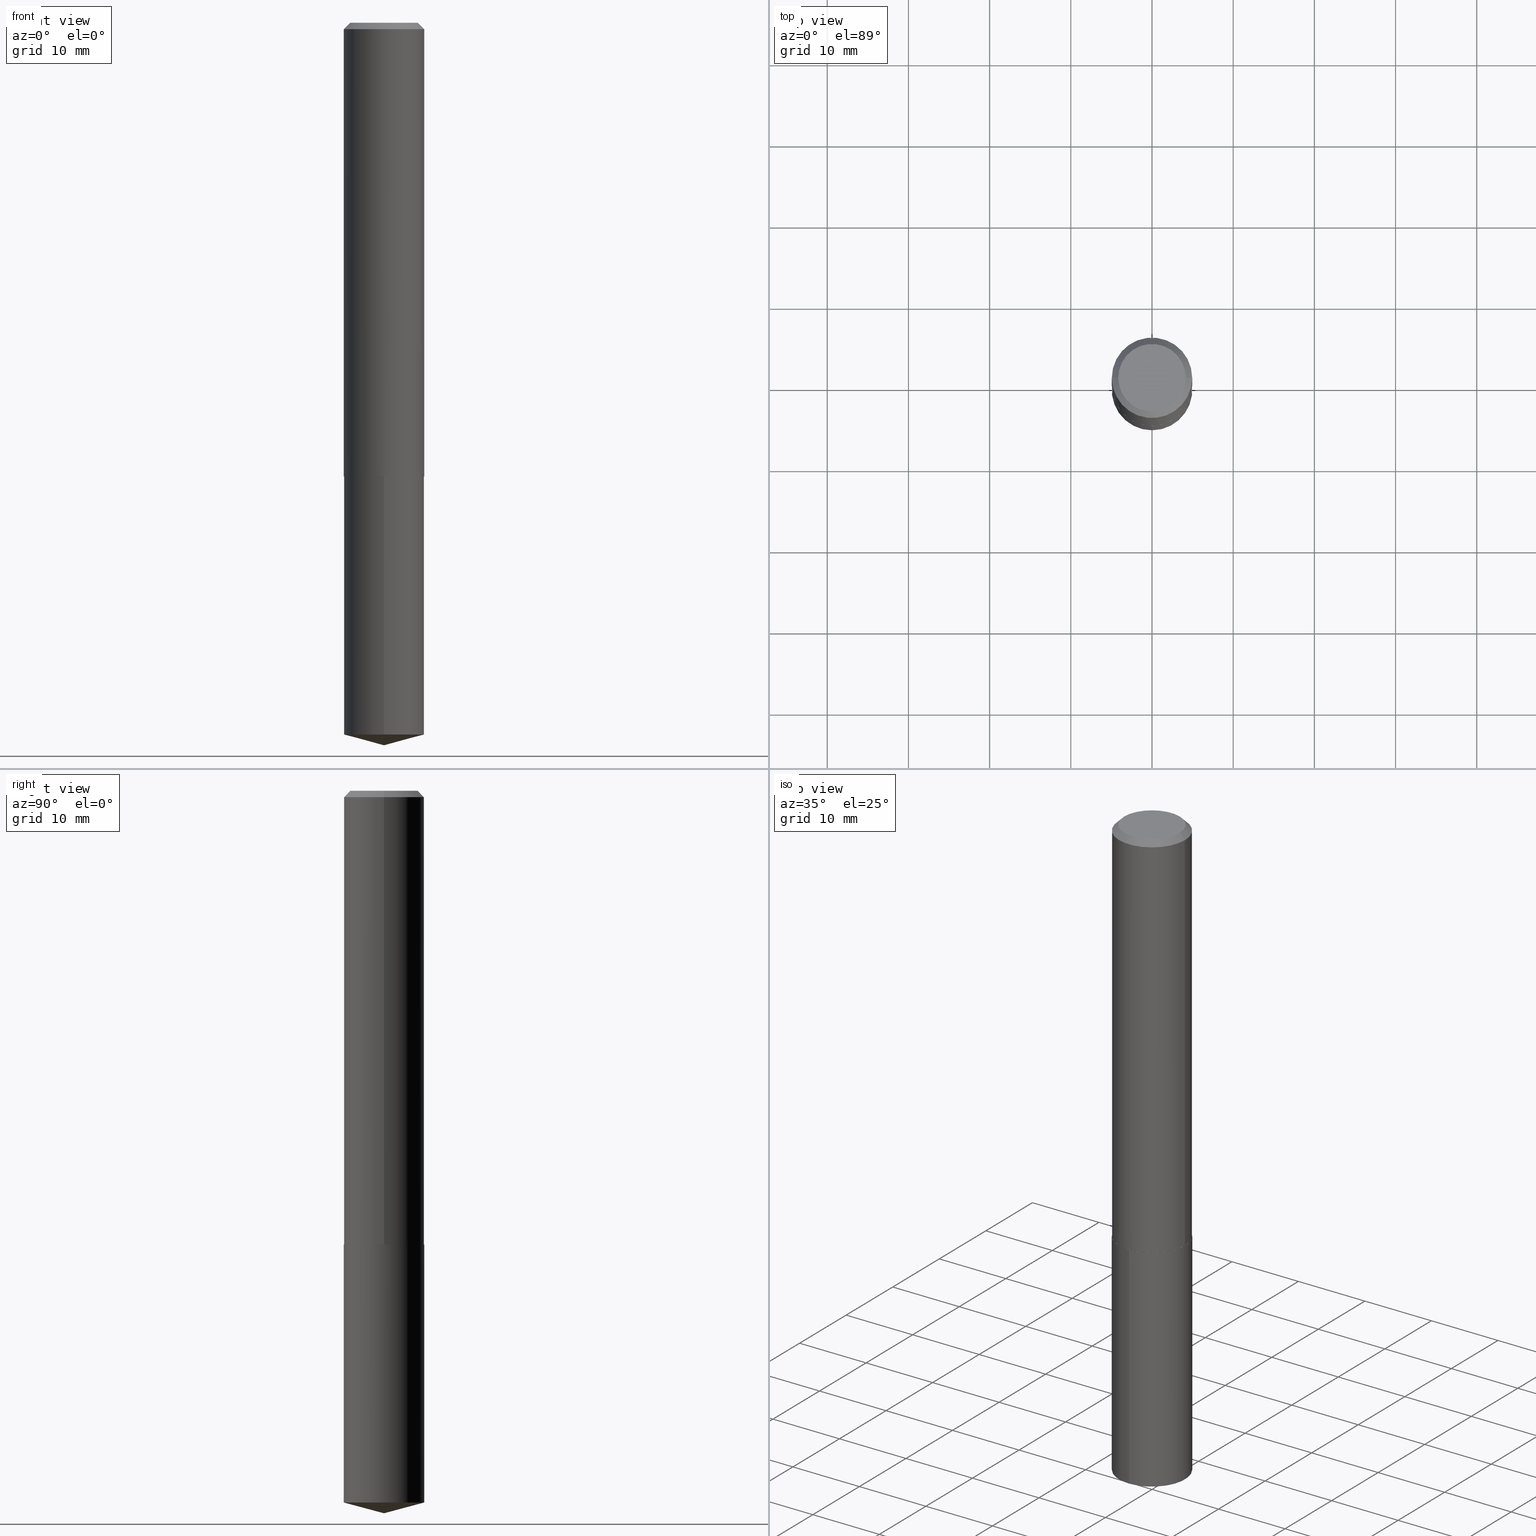
[diagram: canonical four-view strip — front | top / right | iso, engineering-drawing reading convention]
A machine part, canonical four-view strip (front | top / right | iso — engineering-drawing reading convention). The complete STEP part file that produces these views, byte-faithful:
ISO-10303-21;
HEADER;
FILE_DESCRIPTION (( 'STEP AP203' ),
    '1' );
FILE_NAME ('69034.STEP',
    '2024-04-23T14:31:24',
    ( '' ),
    ( '' ),
    'SwSTEP 2.0',
    'SolidWorks 2023',
    '' );
FILE_SCHEMA (( 'CONFIG_CONTROL_DESIGN' ));
ENDSEC;

DATA;
#1 = FACE_OUTER_BOUND ( 'NONE', #18, .T. ) ;
#2 = COORDINATED_UNIVERSAL_TIME_OFFSET ( 5, 0, .BEHIND. ) ;
#3 = ORIENTED_EDGE ( 'NONE', *, *, #290, .T. ) ;
#4 = APPROVAL_STATUS ( 'not_yet_approved' ) ;
#5 = DIRECTION ( 'NONE',  ( 1.000000000000000000, -6.982962677686266711E-15, 4.876176775795935232E-29 ) ) ;
#6 =( NAMED_UNIT ( * ) PLANE_ANGLE_UNIT ( ) SI_UNIT ( $, .RADIAN. ) );
#7 = ORIENTED_EDGE ( 'NONE', *, *, #158, .F. ) ;
#8 = AXIS2_PLACEMENT_3D ( 'NONE', #80, #257, #113 ) ;
#9 = ORIENTED_EDGE ( 'NONE', *, *, #340, .T. ) ;
#10 = CC_DESIGN_PERSON_AND_ORGANIZATION_ASSIGNMENT ( #176, #271, ( #350 ) ) ;
#11 = CARTESIAN_POINT ( 'NONE',  ( -0.1948999999999999899, 1.251870634042204188E-15, -0.03125000000000022898 ) ) ;
#12 = VERTEX_POINT ( 'NONE', #272 ) ;
#13 = CARTESIAN_POINT ( 'NONE',  ( 0.1944000000000002670, -9.041540075068204693E-15, -2.200799999999999201 ) ) ;
#14 = ORIENTED_EDGE ( 'NONE', *, *, #145, .T. ) ;
#15 = LINE ( 'NONE', #11, #56 ) ;
#16 = CONICAL_SURFACE ( 'NONE', #216, 146.9311341562580253, 1.308996938995752313 ) ;
#17 = EDGE_CURVE ( 'NONE', #46, #219, #328, .T. ) ;
#18 = EDGE_LOOP ( 'NONE', ( #42, #308, #69, #148 ) ) ;
#19 = DIRECTION ( 'NONE',  ( -2.445468806185136597E-29, 3.491481338843145583E-15, 1.000000000000000000 ) ) ;
#20 = CARTESIAN_POINT ( 'NONE',  ( -0.1949000000000001565, 1.384847791996436374E-15, -9.587004490906818331E-30 ) ) ;
#21 = DIRECTION ( 'NONE',  ( 1.000000000000000000, -6.982962677686266711E-15, 4.876171972610107408E-29 ) ) ;
#22 = CONICAL_SURFACE ( 'NONE', #8, 146.9311341562580253, 1.308996938995752313 ) ;
#23 = CARTESIAN_POINT ( 'NONE',  ( 1.384847791996519796E-15, 0.1948999999999923294, -2.200800000000000090 ) ) ;
#24 = ADVANCED_FACE ( 'NONE', ( #301 ), #124, .T. ) ;
#25 = DIRECTION ( 'NONE',  ( 1.000000000000000000, -6.982962677686265922E-15, 4.876176775795935793E-29 ) ) ;
#26 = DIRECTION ( 'NONE',  ( -0.7071067811868372299, 7.493145998871401767E-15, 0.7071067811862578045 ) ) ;
#27 = AXIS2_PLACEMENT_3D ( 'NONE', #103, #220, #78 ) ;
#28 = CARTESIAN_POINT ( 'NONE',  ( -1.360979425880999252E-15, -0.1949000000000076782, -2.200799999999999201 ) ) ;
#29 =( CONVERSION_BASED_UNIT ( 'INCH', #59 ) LENGTH_UNIT ( ) NAMED_UNIT ( #238 ) );
#30 = APPROVAL_STATUS ( 'not_yet_approved' ) ;
#31 = ORIENTED_EDGE ( 'NONE', *, *, #258, .F. ) ;
#32 = AXIS2_PLACEMENT_3D ( 'NONE', #262, #193, #229 ) ;
#33 = PERSON_AND_ORGANIZATION ( #173, #146 ) ;
#34 = ADVANCED_FACE ( 'NONE', ( #1 ), #333, .T. ) ;
#35 = ORIENTED_EDGE ( 'NONE', *, *, #353, .T. ) ;
#36 = PERSON_AND_ORGANIZATION_ROLE ( 'creator' ) ;
#37 = CARTESIAN_POINT ( 'NONE',  ( 5.381987748652247650E-29, -7.684052130525994609E-15, -2.200799999999999645 ) ) ;
#38 = EDGE_CURVE ( 'NONE', #44, #331, #320, .T. ) ;
#39 = DIRECTION ( 'NONE',  ( 0.000000000000000000, 0.000000000000000000, 1.000000000000000000 ) ) ;
#40 = EDGE_LOOP ( 'NONE', ( #95, #234 ) ) ;
#41 = ORIENTED_EDGE ( 'NONE', *, *, #325, .F. ) ;
#42 = ORIENTED_EDGE ( 'NONE', *, *, #194, .T. ) ;
#43 = AXIS2_PLACEMENT_3D ( 'NONE', #100, #189, #218 ) ;
#44 = VERTEX_POINT ( 'NONE', #246 ) ;
#45 = CARTESIAN_POINT ( 'NONE',  ( 0.1636499999999999622, -1.284470174469915757E-15, 2.449293598379592612E-19 ) ) ;
#46 = VERTEX_POINT ( 'NONE', #370 ) ;
#47 = DESIGN_CONTEXT ( 'detailed design', #326, 'design' ) ;
#48 = DIRECTION ( 'NONE',  ( -6.982962677686267499E-15, -1.000000000000000000, 3.510303681827568252E-15 ) ) ;
#49 = CC_DESIGN_PERSON_AND_ORGANIZATION_ASSIGNMENT ( #66, #178, ( #389 ) ) ;
#50 = CYLINDRICAL_SURFACE ( 'NONE', #43, 0.1949000000000001565 ) ;
#51 = VECTOR ( 'NONE', #380, 39.37007874015748143 ) ;
#52 = FACE_OUTER_BOUND ( 'NONE', #362, .T. ) ;
#53 = EDGE_CURVE ( 'NONE', #274, #134, #130, .T. ) ;
#54 = DIRECTION ( 'NONE',  ( 0.7071067811865450192, -7.319954787623246579E-15, -0.7071067811865500152 ) ) ;
#55 = DIRECTION ( 'NONE',  ( -2.445539226815718416E-29, 3.491380492492059184E-15, 1.000000000000000000 ) ) ;
#56 = VECTOR ( 'NONE', #215, 39.37007874015748143 ) ;
#57 = DIRECTION ( 'NONE',  ( -2.445468806185136597E-29, 3.491481338843145583E-15, 1.000000000000000000 ) ) ;
#58 = CARTESIAN_POINT ( 'NONE',  ( 5.381987748652247650E-29, -7.684052130525993031E-15, -2.200799999999999201 ) ) ;
#59 = LENGTH_MEASURE_WITH_UNIT ( LENGTH_MEASURE( 0.02539999999999999897 ), #382 );
#60 = AXIS2_PLACEMENT_3D ( 'NONE', #128, #156, #378 ) ;
#61 = AXIS2_PLACEMENT_3D ( 'NONE', #58, #57, #259 ) ;
#62 = LOCAL_TIME ( 10, 31, 24.00000000000000000, #241 ) ;
#63 = CALENDAR_DATE ( 2024, 23, 4 ) ;
#64 = COORDINATED_UNIVERSAL_TIME_OFFSET ( 5, 0, .BEHIND. ) ;
#65 = CARTESIAN_POINT ( 'NONE',  ( 8.568614933392025146E-29, -1.223389199294186596E-14, -3.503899999999999793 ) ) ;
#66 = PERSON_AND_ORGANIZATION ( #173, #146 ) ;
#67 = ORIENTED_EDGE ( 'NONE', *, *, #357, .T. ) ;
#68 = LOCAL_TIME ( 10, 31, 24.00000000000000000, #323 ) ;
#69 = ORIENTED_EDGE ( 'NONE', *, *, #179, .F. ) ;
#70 = DIRECTION ( 'NONE',  ( -6.982962677686266711E-15, -1.000000000000000000, 2.803332984776052637E-15 ) ) ;
#71 = ADVANCED_FACE ( 'NONE', ( #318 ), #364, .T. ) ;
#72 = ORIENTED_EDGE ( 'NONE', *, *, #376, .T. ) ;
#73 = CONICAL_SURFACE ( 'NONE', #287, 0.1949000000000002952, 0.7853981633978580623 ) ;
#74 = CARTESIAN_POINT ( 'NONE',  ( 5.380765014249154849E-29, -7.682306389856572316E-15, -2.200299999999999923 ) ) ;
#75 = CC_DESIGN_APPROVAL ( #383, ( #350 ) ) ;
#76 = FACE_OUTER_BOUND ( 'NONE', #152, .T. ) ;
#77 = DIRECTION ( 'NONE',  ( 1.000000000000000000, -6.982962677686263555E-15, 0.000000000000000000 ) ) ;
#78 = DIRECTION ( 'NONE',  ( -6.982962677686266711E-15, -1.000000000000000000, 2.803332984776052637E-15 ) ) ;
#79 = CARTESIAN_POINT ( 'NONE',  ( 0.1949000000000001565, -1.360979425881054472E-15, 9.503668536026285822E-30 ) ) ;
#80 = CARTESIAN_POINT ( 'NONE',  ( -8.771230200676286041E-28, 1.252222548509697859E-13, 35.86617874015747987 ) ) ;
#81 = FACE_OUTER_BOUND ( 'NONE', #185, .T. ) ;
#82 = DIRECTION ( 'NONE',  ( -2.438088387897960049E-29, 3.491481338843145188E-15, 1.000000000000000000 ) ) ;
#83 = CARTESIAN_POINT ( 'NONE',  ( 8.441055792269541156E-29, -1.205133864778130519E-14, -3.451676702395174878 ) ) ;
#84 = DIRECTION ( 'NONE',  ( -6.982962677686266711E-15, -1.000000000000000000, 2.803332984776052637E-15 ) ) ;
#85 = DATE_AND_TIME ( #63, #339 ) ;
#86 = ORIENTED_EDGE ( 'NONE', *, *, #53, .T. ) ;
#87 = ADVANCED_FACE ( 'NONE', ( #52 ), #341, .T. ) ;
#88 = APPLICATION_PROTOCOL_DEFINITION ( 'international standard', 'config_control_design', 1994, #326 ) ;
#89 = VERTEX_POINT ( 'NONE', #45 ) ;
#90 = PERSON_AND_ORGANIZATION ( #173, #146 ) ;
#91 = EDGE_LOOP ( 'NONE', ( #240, #356 ) ) ;
#92 = VECTOR ( 'NONE', #316, 39.37007874015748143 ) ;
#93 = DATE_AND_TIME ( #122, #62 ) ;
#94 = APPROVAL ( #30, 'UNSPECIFIED' ) ;
#95 = ORIENTED_EDGE ( 'NONE', *, *, #38, .T. ) ;
#96 = VERTEX_POINT ( 'NONE', #97 ) ;
#97 = CARTESIAN_POINT ( 'NONE',  ( -0.1949000000000002952, -6.297458597860134956E-15, -2.200299999999999923 ) ) ;
#98 = CARTESIAN_POINT ( 'NONE',  ( 5.380765014249154849E-29, -7.682306389856572316E-15, -2.200299999999999923 ) ) ;
#99 = EDGE_CURVE ( 'NONE', #12, #89, #273, .T. ) ;
#100 = CARTESIAN_POINT ( 'NONE',  ( 0.000000000000000000, 0.000000000000000000, 0.000000000000000000 ) ) ;
#101 = ORIENTED_EDGE ( 'NONE', *, *, #340, .F. ) ;
#102 = ADVANCED_FACE ( 'NONE', ( #188 ), #73, .T. ) ;
#103 = CARTESIAN_POINT ( 'NONE',  ( 5.381987748652247650E-29, -7.684052130525994609E-15, -2.200799999999999645 ) ) ;
#104 = DIRECTION ( 'NONE',  ( -1.000000000000000000, 6.982962677686266711E-15, 0.000000000000000000 ) ) ;
#105 = AXIS2_PLACEMENT_3D ( 'NONE', #374, #346, #161 ) ;
#106 = AXIS2_PLACEMENT_3D ( 'NONE', #83, #294, #226 ) ;
#107 = CARTESIAN_POINT ( 'NONE',  ( 0.1949000000000002952, -9.043285815737626985E-15, -2.200299999999999923 ) ) ;
#108 = CARTESIAN_POINT ( 'NONE',  ( 8.441055792269541156E-29, -1.205133864778130519E-14, -3.451676702395174878 ) ) ;
#109 = EDGE_CURVE ( 'NONE', #263, #134, #223, .T. ) ;
#110 = CARTESIAN_POINT ( 'NONE',  ( 0.1949000000000002952, -9.043285815737626985E-15, -2.200299999999999923 ) ) ;
#111 = CONICAL_SURFACE ( 'NONE', #32, 0.1949000000000002952, 0.7853981633978580623 ) ;
#112 = CARTESIAN_POINT ( 'NONE',  ( 5.381987748652247650E-29, -7.684052130525994609E-15, -2.200799999999999645 ) ) ;
#113 = DIRECTION ( 'NONE',  ( -6.982962677686267499E-15, -1.000000000000000000, 3.510303681827568252E-15 ) ) ;
#114 = ADVANCED_FACE ( 'NONE', ( #311 ), #16, .T. ) ;
#115 = ORIENTED_EDGE ( 'NONE', *, *, #306, .F. ) ;
#116 = VECTOR ( 'NONE', #342, 39.37007874015748143 ) ;
#117 = DIRECTION ( 'NONE',  ( 1.000000000000000000, 0.000000000000000000, 0.000000000000000000 ) ) ;
#118 = ORIENTED_EDGE ( 'NONE', *, *, #202, .F. ) ;
#119 = CALENDAR_DATE ( 2024, 23, 4 ) ;
#120 = VERTEX_POINT ( 'NONE', #251 ) ;
#121 = CC_DESIGN_PERSON_AND_ORGANIZATION_ASSIGNMENT ( #329, #36, ( #389 ) ) ;
#122 = CALENDAR_DATE ( 2024, 23, 4 ) ;
#123 = ORIENTED_EDGE ( 'NONE', *, *, #297, .F. ) ;
#124 = CONICAL_SURFACE ( 'NONE', #249, 0.1948999999999999899, 0.7853981633974447263 ) ;
#125 = ORIENTED_EDGE ( 'NONE', *, *, #53, .F. ) ;
#126 = ORIENTED_EDGE ( 'NONE', *, *, #179, .T. ) ;
#127 = DIRECTION ( 'NONE',  ( -2.445468806185136597E-29, 3.491481338843145583E-15, 1.000000000000000000 ) ) ;
#128 = CARTESIAN_POINT ( 'NONE',  ( 7.642090019328607917E-31, -1.091087918388491006E-16, -0.03125000000000022898 ) ) ;
#129 = CC_DESIGN_PERSON_AND_ORGANIZATION_ASSIGNMENT ( #33, #147, ( #334 ) ) ;
#130 = CIRCLE ( 'NONE', #60, 0.1948999999999999899 ) ;
#131 = CIRCLE ( 'NONE', #275, 0.1944000000000002670 ) ;
#132 = DIRECTION ( 'NONE',  ( -2.445539226815718416E-29, 3.491380492492059184E-15, 1.000000000000000000 ) ) ;
#133 = APPROVAL_PERSON_ORGANIZATION ( #304, #292, #363 ) ;
#134 = VERTEX_POINT ( 'NONE', #276 ) ;
#135 = CARTESIAN_POINT ( 'NONE',  ( 7.642090019328607917E-31, -1.091087918388491006E-16, -0.03125000000000022898 ) ) ;
#136 = CARTESIAN_POINT ( 'NONE',  ( -5.989671091818699506E-48, 8.551662891794013634E-34, 2.449293598294725547E-19 ) ) ;
#137 = DIRECTION ( 'NONE',  ( -2.445539226815718416E-29, 3.491380492492059184E-15, 1.000000000000000000 ) ) ;
#138 = VECTOR ( 'NONE', #177, 39.37007874015748143 ) ;
#139 = CARTESIAN_POINT ( 'NONE',  ( -0.1948999999999999899, -2.510859798851272954E-15, -0.03125000000000022898 ) ) ;
#140 = FACE_OUTER_BOUND ( 'NONE', #91, .T. ) ;
#141 = CARTESIAN_POINT ( 'NONE',  ( 1.384847791996488833E-15, 0.1948999999999923016, -2.200800000000000090 ) ) ;
#142 = CIRCLE ( 'NONE', #351, 0.1948999999999999899 ) ;
#143 = APPROVAL_ROLE ( '' ) ;
#144 = CARTESIAN_POINT ( 'NONE',  ( 7.642090019328607917E-31, -1.091087918388491006E-16, -0.03125000000000022898 ) ) ;
#145 = EDGE_CURVE ( 'NONE', #96, #263, #168, .T. ) ;
#146 = ORGANIZATION ( 'UNSPECIFIED', 'UNSPECIFIED', '' ) ;
#147 = PERSON_AND_ORGANIZATION_ROLE ( 'classification_officer' ) ;
#148 = ORIENTED_EDGE ( 'NONE', *, *, #109, .F. ) ;
#149 = APPROVAL_DATE_TIME ( #327, #383 ) ;
#150 = VERTEX_POINT ( 'NONE', #13 ) ;
#151 = PERSON_AND_ORGANIZATION_ROLE ( 'design_owner' ) ;
#152 = EDGE_LOOP ( 'NONE', ( #245, #14, #207, #125 ) ) ;
#153 = EDGE_LOOP ( 'NONE', ( #268, #9, #307 ) ) ;
#154 = AXIS2_PLACEMENT_3D ( 'NONE', #136, #279, #377 ) ;
#155 = VECTOR ( 'NONE', #26, 39.37007874015748143 ) ;
#156 = DIRECTION ( 'NONE',  ( -2.445468806185136597E-29, 3.491481338843145583E-15, 1.000000000000000000 ) ) ;
#157 = ORIENTED_EDGE ( 'NONE', *, *, #376, .F. ) ;
#158 = EDGE_CURVE ( 'NONE', #150, #237, #131, .T. ) ;
#159 = CARTESIAN_POINT ( 'NONE',  ( 5.380765014249154849E-29, -7.682306389856572316E-15, -2.200299999999999923 ) ) ;
#160 = ORIENTED_EDGE ( 'NONE', *, *, #353, .F. ) ;
#161 = DIRECTION ( 'NONE',  ( -6.982962677686266711E-15, -1.000000000000000000, 2.803332984776052637E-15 ) ) ;
#162 = ORIENTED_EDGE ( 'NONE', *, *, #248, .T. ) ;
#163 = LOCAL_TIME ( 10, 31, 24.00000000000000000, #2 ) ;
#164 = CYLINDRICAL_SURFACE ( 'NONE', #27, 0.1948999999999999899 ) ;
#165 = CARTESIAN_POINT ( 'NONE',  ( -0.1944000000000002670, -6.300107825034246157E-15, -2.200799999999999201 ) ) ;
#166 = FACE_OUTER_BOUND ( 'NONE', #40, .T. ) ;
#167 = CARTESIAN_POINT ( 'NONE',  ( 0.1948999999999999899, -1.446219851604520290E-15, -0.03125000000000022898 ) ) ;
#168 = CIRCLE ( 'NONE', #366, 0.1949000000000002952 ) ;
#169 = AXIS2_PLACEMENT_3D ( 'NONE', #354, #233, #21 ) ;
#170 = DIRECTION ( 'NONE',  ( -1.000000000000000000, 6.982962677686265922E-15, -4.876176775795935793E-29 ) ) ;
#171 = FACE_OUTER_BOUND ( 'NONE', #186, .T. ) ;
#172 = LINE ( 'NONE', #167, #222 ) ;
#173 = PERSON ( 'UNSPECIFIED', 'UNSPECIFIED', 'UNSPECIFIED', ('UNSPECIFIED'), ('UNSPECIFIED'), ('UNSPECIFIED') ) ;
#174 = CIRCLE ( 'NONE', #169, 0.1636499999999999622 ) ;
#175 =( NAMED_UNIT ( * ) SI_UNIT ( $, .STERADIAN. ) SOLID_ANGLE_UNIT ( ) );
#176 = PERSON_AND_ORGANIZATION ( #173, #146 ) ;
#177 = DIRECTION ( 'NONE',  ( -6.745023994389846233E-15, -0.9659258262890687563, 0.2588190451025191852 ) ) ;
#178 = PERSON_AND_ORGANIZATION_ROLE ( 'design_supplier' ) ;
#179 = EDGE_CURVE ( 'NONE', #134, #274, #288, .T. ) ;
#180 = ORIENTED_EDGE ( 'NONE', *, *, #194, .F. ) ;
#181 = CIRCLE ( 'NONE', #310, 0.1948999999999999899 ) ;
#182 = DATE_TIME_ROLE ( 'classification_date' ) ;
#183 = CARTESIAN_POINT ( 'NONE',  ( 0.000000000000000000, 0.000000000000000000, 0.000000000000000000 ) ) ;
#184 = ORIENTED_EDGE ( 'NONE', *, *, #202, .T. ) ;
#185 = EDGE_LOOP ( 'NONE', ( #101, #242, #337 ) ) ;
#186 = EDGE_LOOP ( 'NONE', ( #7, #212 ) ) ;
#187 = APPROVAL_PERSON_ORGANIZATION ( #267, #383, #143 ) ;
#188 = FACE_OUTER_BOUND ( 'NONE', #365, .T. ) ;
#189 = DIRECTION ( 'NONE',  ( -2.445468806185136597E-29, 3.491481338843145583E-15, 1.000000000000000000 ) ) ;
#190 = DIRECTION ( 'NONE',  ( 1.000000000000000000, -6.982962677686267499E-15, 0.000000000000000000 ) ) ;
#191 = LINE ( 'NONE', #20, #92 ) ;
#192 = DIRECTION ( 'NONE',  ( -2.445468806185136597E-29, 3.491481338843145583E-15, 1.000000000000000000 ) ) ;
#193 = DIRECTION ( 'NONE',  ( -2.445468806185136597E-29, 3.491481338843145583E-15, 1.000000000000000000 ) ) ;
#194 = EDGE_CURVE ( 'NONE', #263, #96, #296, .T. ) ;
#195 = MANIFOLD_SOLID_BREP ( 'Body-Move/Copy2[1]', #349 ) ;
#196 = LINE ( 'NONE', #110, #256 ) ;
#197 = AXIS2_PLACEMENT_3D ( 'NONE', #98, #19, #313 ) ;
#198 = LOCAL_TIME ( 10, 31, 24.00000000000000000, #209 ) ;
#199 = CC_DESIGN_SECURITY_CLASSIFICATION ( #334, ( #389 ) ) ;
#200 = LINE ( 'NONE', #381, #155 ) ;
#201 = FACE_OUTER_BOUND ( 'NONE', #213, .T. ) ;
#202 = EDGE_CURVE ( 'NONE', #12, #274, #15, .T. ) ;
#203 = LINE ( 'NONE', #141, #51 ) ;
#204 = VECTOR ( 'NONE', #289, 39.37007874015748143 ) ;
#205 = PRODUCT ( '69034', '69034', '', ( #367 ) ) ;
#206 = PERSON_AND_ORGANIZATION ( #173, #146 ) ;
#207 = ORIENTED_EDGE ( 'NONE', *, *, #109, .T. ) ;
#208 = ORIENTED_EDGE ( 'NONE', *, *, #158, .T. ) ;
#209 = COORDINATED_UNIVERSAL_TIME_OFFSET ( 5, 0, .BEHIND. ) ;
#210 = ORIENTED_EDGE ( 'NONE', *, *, #248, .F. ) ;
#211 = APPROVAL_DATE_TIME ( #93, #292 ) ;
#212 = ORIENTED_EDGE ( 'NONE', *, *, #357, .F. ) ;
#213 = EDGE_LOOP ( 'NONE', ( #157, #67, #309, #375 ) ) ;
#214 = CC_DESIGN_PERSON_AND_ORGANIZATION_ASSIGNMENT ( #206, #151, ( #205 ) ) ;
#215 = DIRECTION ( 'NONE',  ( -0.7071067811865450192, 2.468850131082230634E-15, -0.7071067811865500152 ) ) ;
#216 = AXIS2_PLACEMENT_3D ( 'NONE', #282, #132, #48 ) ;
#217 = CARTESIAN_POINT ( 'NONE',  ( -1.360979425880968486E-15, -0.1949000000000119803, -3.451676702395174434 ) ) ;
#218 = DIRECTION ( 'NONE',  ( 1.000000000000000000, -6.982962677686266711E-15, 4.876176775795935232E-29 ) ) ;
#219 = VERTEX_POINT ( 'NONE', #217 ) ;
#220 = DIRECTION ( 'NONE',  ( -2.445539226815718416E-29, 3.491380492492059184E-15, 1.000000000000000000 ) ) ;
#221 = AXIS2_PLACEMENT_3D ( 'NONE', #37, #270, #70 ) ;
#222 = VECTOR ( 'NONE', #54, 39.37007874015748143 ) ;
#223 = LINE ( 'NONE', #79, #116 ) ;
#224 = DIRECTION ( 'NONE',  ( 2.445539226815717855E-29, -3.491380492492059184E-15, -1.000000000000000000 ) ) ;
#225 = ADVANCED_FACE ( 'NONE', ( #76 ), #50, .T. ) ;
#226 = DIRECTION ( 'NONE',  ( -6.982962677686266711E-15, -1.000000000000000000, 2.803332984776052637E-15 ) ) ;
#227 = ADVANCED_FACE ( 'NONE', ( #314 ), #164, .T. ) ;
#228 = CLOSED_SHELL ( 'NONE', ( #71, #34, #102, #369, #299, #225, #24, #360 ) ) ;
#229 = DIRECTION ( 'NONE',  ( 1.000000000000000000, -6.982962677686263555E-15, 0.000000000000000000 ) ) ;
#230 = AXIS2_PLACEMENT_3D ( 'NONE', #298, #39, #117 ) ;
#231 = EDGE_CURVE ( 'NONE', #96, #274, #191, .T. ) ;
#232 = LINE ( 'NONE', #322, #204 ) ;
#233 = DIRECTION ( 'NONE',  ( -2.445468806185136597E-29, 3.491481338843145583E-15, 1.000000000000000000 ) ) ;
#234 = ORIENTED_EDGE ( 'NONE', *, *, #306, .T. ) ;
#235 = CIRCLE ( 'NONE', #106, 0.1948999999999999899 ) ;
#236 = CALENDAR_DATE ( 2024, 23, 4 ) ;
#237 = VERTEX_POINT ( 'NONE', #165 ) ;
#238 = DIMENSIONAL_EXPONENTS ( 1.000000000000000000, 0.000000000000000000, 0.000000000000000000, 0.000000000000000000, 0.000000000000000000, 0.000000000000000000, 0.000000000000000000 ) ;
#239 = CALENDAR_DATE ( 2024, 23, 4 ) ;
#240 = ORIENTED_EDGE ( 'NONE', *, *, #99, .T. ) ;
#241 = COORDINATED_UNIVERSAL_TIME_OFFSET ( 5, 0, .BEHIND. ) ;
#242 = ORIENTED_EDGE ( 'NONE', *, *, #17, .T. ) ;
#243 = AXIS2_PLACEMENT_3D ( 'NONE', #135, #255, #104 ) ;
#244 = DIRECTION ( 'NONE',  ( -1.000000000000000000, 6.982962677686266711E-15, 0.000000000000000000 ) ) ;
#245 = ORIENTED_EDGE ( 'NONE', *, *, #231, .F. ) ;
#246 = CARTESIAN_POINT ( 'NONE',  ( -1.360979425880999252E-15, -0.1949000000000076782, -2.200799999999999201 ) ) ;
#247 = CARTESIAN_POINT ( 'NONE',  ( 5.381987748652247650E-29, -7.684052130525993031E-15, -2.200799999999999201 ) ) ;
#248 = EDGE_CURVE ( 'NONE', #219, #44, #284, .T. ) ;
#249 = AXIS2_PLACEMENT_3D ( 'NONE', #144, #266, #244 ) ;
#250 = CC_DESIGN_APPROVAL ( #94, ( #389 ) ) ;
#251 = CARTESIAN_POINT ( 'NONE',  ( 1.384847791996519007E-15, 0.1948999999999878885, -3.451676702395175766 ) ) ;
#252 = ORIENTED_EDGE ( 'NONE', *, *, #99, .F. ) ;
#253 = UNCERTAINTY_MEASURE_WITH_UNIT (LENGTH_MEASURE( 1.000000000000000082E-05 ), #29, 'distance_accuracy_value', 'NONE');
#254 = CARTESIAN_POINT ( 'NONE',  ( 7.642090019328607917E-31, -1.091087918388491006E-16, -0.03125000000000022898 ) ) ;
#255 = DIRECTION ( 'NONE',  ( 2.445468806185136597E-29, -3.491481338843145583E-15, -1.000000000000000000 ) ) ;
#256 = VECTOR ( 'NONE', #347, 39.37007874015748143 ) ;
#257 = DIRECTION ( 'NONE',  ( -2.445539226815718416E-29, 3.491380492492059184E-15, 1.000000000000000000 ) ) ;
#258 = EDGE_CURVE ( 'NONE', #150, #263, #196, .T. ) ;
#259 = DIRECTION ( 'NONE',  ( 1.000000000000000000, -6.982962677686267499E-15, 0.000000000000000000 ) ) ;
#260 = DIRECTION ( 'NONE',  ( -6.982962677686266711E-15, -1.000000000000000000, 2.803332984776052637E-15 ) ) ;
#261 = AXIS2_PLACEMENT_3D ( 'NONE', #293, #352, #170 ) ;
#262 = CARTESIAN_POINT ( 'NONE',  ( 5.380765014249154849E-29, -7.682306389856572316E-15, -2.200299999999999923 ) ) ;
#263 = VERTEX_POINT ( 'NONE', #107 ) ;
#264 = APPROVAL_STATUS ( 'not_yet_approved' ) ;
#265 = ADVANCED_FACE ( 'NONE', ( #81 ), #22, .T. ) ;
#266 = DIRECTION ( 'NONE',  ( 2.445468806185136597E-29, -3.491481338843145583E-15, -1.000000000000000000 ) ) ;
#267 = PERSON_AND_ORGANIZATION ( #173, #146 ) ;
#268 = ORIENTED_EDGE ( 'NONE', *, *, #17, .F. ) ;
#269 = DATE_AND_TIME ( #236, #198 ) ;
#270 = DIRECTION ( 'NONE',  ( -2.445539226815718416E-29, 3.491380492492059184E-15, 1.000000000000000000 ) ) ;
#271 = PERSON_AND_ORGANIZATION_ROLE ( 'creator' ) ;
#272 = CARTESIAN_POINT ( 'NONE',  ( -0.1636499999999999622, 1.197316238122780624E-15, 2.449293598212901450E-19 ) ) ;
#273 = CIRCLE ( 'NONE', #154, 0.1636499999999999622 ) ;
#274 = VERTEX_POINT ( 'NONE', #139 ) ;
#275 = AXIS2_PLACEMENT_3D ( 'NONE', #247, #343, #190 ) ;
#276 = CARTESIAN_POINT ( 'NONE',  ( 0.1948999999999999899, -1.470088217719902192E-15, -0.03125000000000022898 ) ) ;
#277 = EDGE_LOOP ( 'NONE', ( #160, #252, #184, #86 ) ) ;
#278 = DIRECTION ( 'NONE',  ( -2.445468806185136597E-29, 3.491481338843145583E-15, 1.000000000000000000 ) ) ;
#279 = DIRECTION ( 'NONE',  ( -2.445468806185136597E-29, 3.491481338843145583E-15, 1.000000000000000000 ) ) ;
#280 = AXIS2_PLACEMENT_3D ( 'NONE', #254, #127, #371 ) ;
#281 = CC_DESIGN_APPROVAL ( #292, ( #334 ) ) ;
#282 = CARTESIAN_POINT ( 'NONE',  ( -8.771230200676286041E-28, 1.252222548509697859E-13, 35.86617874015747987 ) ) ;
#283 = EDGE_CURVE ( 'NONE', #120, #219, #181, .T. ) ;
#284 = LINE ( 'NONE', #28, #315 ) ;
#285 = ADVANCED_FACE ( 'NONE', ( #166 ), #379, .F. ) ;
#286 = DIRECTION ( 'NONE',  ( -2.445539226815718416E-29, 3.491380492492059184E-15, 1.000000000000000000 ) ) ;
#287 = AXIS2_PLACEMENT_3D ( 'NONE', #159, #278, #338 ) ;
#288 = CIRCLE ( 'NONE', #280, 0.1948999999999999899 ) ;
#289 = DIRECTION ( 'NONE',  ( 6.863315791527700570E-15, 0.9659258262890705327, 0.2588190451025124128 ) ) ;
#290 = EDGE_CURVE ( 'NONE', #219, #120, #235, .T. ) ;
#291 = CARTESIAN_POINT ( 'NONE',  ( 7.541623797622303782E-29, -4.591330389550530259E-15, -2.200799999999999645 ) ) ;
#292 = APPROVAL ( #4, 'UNSPECIFIED' ) ;
#293 = CARTESIAN_POINT ( 'NONE',  ( -2.994835545909349753E-48, 4.275831445897006817E-34, 1.224646799147362773E-19 ) ) ;
#294 = DIRECTION ( 'NONE',  ( -2.445539226815718416E-29, 3.491380492492059184E-15, 1.000000000000000000 ) ) ;
#295 = APPLICATION_CONTEXT ( 'configuration controlled 3d designs of mechanical parts and assemblies' ) ;
#296 = CIRCLE ( 'NONE', #197, 0.1949000000000002952 ) ;
#297 = EDGE_CURVE ( 'NONE', #89, #12, #174, .T. ) ;
#298 = CARTESIAN_POINT ( 'NONE',  ( 0.000000000000000000, 0.000000000000000000, 0.000000000000000000 ) ) ;
#299 = ADVANCED_FACE ( 'NONE', ( #201 ), #111, .T. ) ;
#300 = DATE_TIME_ROLE ( 'creation_date' ) ;
#301 = FACE_OUTER_BOUND ( 'NONE', #277, .T. ) ;
#302 = SECURITY_CLASSIFICATION_LEVEL ( 'unclassified' ) ;
#303 = EDGE_LOOP ( 'NONE', ( #41, #359, #162, #115 ) ) ;
#304 = PERSON_AND_ORGANIZATION ( #173, #146 ) ;
#305 = DIRECTION ( 'NONE',  ( -2.445468806185136597E-29, 3.491481338843145583E-15, 1.000000000000000000 ) ) ;
#306 = EDGE_CURVE ( 'NONE', #331, #44, #142, .T. ) ;
#307 = ORIENTED_EDGE ( 'NONE', *, *, #290, .F. ) ;
#308 = ORIENTED_EDGE ( 'NONE', *, *, #231, .T. ) ;
#309 = ORIENTED_EDGE ( 'NONE', *, *, #258, .T. ) ;
#310 = AXIS2_PLACEMENT_3D ( 'NONE', #108, #286, #260 ) ;
#311 = FACE_OUTER_BOUND ( 'NONE', #153, .T. ) ;
#312 = PRODUCT_RELATED_PRODUCT_CATEGORY ( 'detail', '', ( #205 ) ) ;
#313 = DIRECTION ( 'NONE',  ( 1.000000000000000000, -6.982962677686263555E-15, 0.000000000000000000 ) ) ;
#314 = FACE_OUTER_BOUND ( 'NONE', #303, .T. ) ;
#315 = VECTOR ( 'NONE', #137, 39.37007874015748143 ) ;
#316 = DIRECTION ( 'NONE',  ( -2.445468806185136877E-29, 3.491481338843145188E-15, 1.000000000000000000 ) ) ;
#317 = CC_DESIGN_DATE_AND_TIME_ASSIGNMENT ( #85, #300, ( #350 ) ) ;
#318 = FACE_OUTER_BOUND ( 'NONE', #368, .T. ) ;
#319 = CARTESIAN_POINT ( 'NONE',  ( 5.381987748652247650E-29, -7.684052130525994609E-15, -2.200799999999999645 ) ) ;
#320 = CIRCLE ( 'NONE', #221, 0.1948999999999999899 ) ;
#321 = DIRECTION ( 'NONE',  ( 6.982962677686265922E-15, 1.000000000000000000, -3.491380492492059184E-15 ) ) ;
#322 = CARTESIAN_POINT ( 'NONE',  ( 8.568927614853146654E-29, -1.223344810764292579E-14, -3.503899999999999793 ) ) ;
#323 = COORDINATED_UNIVERSAL_TIME_OFFSET ( 5, 0, .BEHIND. ) ;
#324 = AXIS2_PLACEMENT_3D ( 'NONE', #291, #82, #25 ) ;
#325 = EDGE_CURVE ( 'NONE', #120, #331, #203, .T. ) ;
#326 = APPLICATION_CONTEXT ( 'configuration controlled 3d designs of mechanical parts and assemblies' ) ;
#327 = DATE_AND_TIME ( #239, #68 ) ;
#328 = LINE ( 'NONE', #65, #138 ) ;
#329 = PERSON_AND_ORGANIZATION ( #173, #146 ) ;
#330 = MANIFOLD_SOLID_BREP ( 'Body-Move/Copy2[2]', #228 ) ;
#331 = VERTEX_POINT ( 'NONE', #23 ) ;
#332 = APPLICATION_PROTOCOL_DEFINITION ( 'international standard', 'config_control_design', 1994, #295 ) ;
#333 = CYLINDRICAL_SURFACE ( 'NONE', #387, 0.1949000000000001565 ) ;
#334 = SECURITY_CLASSIFICATION ( '', '', #302 ) ;
#335 = SHAPE_DEFINITION_REPRESENTATION ( #390, #385 ) ;
#336 = ORIENTED_EDGE ( 'NONE', *, *, #38, .F. ) ;
#337 = ORIENTED_EDGE ( 'NONE', *, *, #283, .F. ) ;
#338 = DIRECTION ( 'NONE',  ( 1.000000000000000000, -6.982962677686263555E-15, 0.000000000000000000 ) ) ;
#339 = LOCAL_TIME ( 10, 31, 24.00000000000000000, #64 ) ;
#340 = EDGE_CURVE ( 'NONE', #46, #120, #232, .T. ) ;
#341 = CYLINDRICAL_SURFACE ( 'NONE', #105, 0.1948999999999999899 ) ;
#342 = DIRECTION ( 'NONE',  ( -2.445468806185136877E-29, 3.491481338843145188E-15, 1.000000000000000000 ) ) ;
#343 = DIRECTION ( 'NONE',  ( -2.445468806185136597E-29, 3.491481338843145583E-15, 1.000000000000000000 ) ) ;
#344 = CC_DESIGN_DATE_AND_TIME_ASSIGNMENT ( #361, #182, ( #334 ) ) ;
#345 = AXIS2_PLACEMENT_3D ( 'NONE', #112, #224, #321 ) ;
#346 = DIRECTION ( 'NONE',  ( -2.445539226815718416E-29, 3.491380492492059184E-15, 1.000000000000000000 ) ) ;
#347 = DIRECTION ( 'NONE',  ( 0.7071067811868372299, -2.468850131085291414E-15, 0.7071067811862578045 ) ) ;
#348 = PLANE ( 'NONE',  #261 ) ;
#349 = CLOSED_SHELL ( 'NONE', ( #87, #114, #265, #227, #285 ) ) ;
#350 = PRODUCT_DEFINITION ( 'UNKNOWN', '', #389, #47 ) ;
#351 = AXIS2_PLACEMENT_3D ( 'NONE', #319, #55, #84 ) ;
#352 = DIRECTION ( 'NONE',  ( 2.438088387897960049E-29, -3.491481338843145188E-15, -1.000000000000000000 ) ) ;
#353 = EDGE_CURVE ( 'NONE', #89, #134, #172, .T. ) ;
#354 = CARTESIAN_POINT ( 'NONE',  ( -5.989671091818699506E-48, 8.551662891794013634E-34, 2.449293598294725547E-19 ) ) ;
#355 =( GEOMETRIC_REPRESENTATION_CONTEXT ( 3 ) GLOBAL_UNCERTAINTY_ASSIGNED_CONTEXT ( ( #253 ) ) GLOBAL_UNIT_ASSIGNED_CONTEXT ( ( #29, #6, #175 ) ) REPRESENTATION_CONTEXT ( 'NONE', 'WORKASPACE' ) );
#356 = ORIENTED_EDGE ( 'NONE', *, *, #297, .T. ) ;
#357 = EDGE_CURVE ( 'NONE', #237, #150, #372, .T. ) ;
#358 = APPROVAL_DATE_TIME ( #269, #94 ) ;
#359 = ORIENTED_EDGE ( 'NONE', *, *, #283, .T. ) ;
#360 = ADVANCED_FACE ( 'NONE', ( #140 ), #348, .F. ) ;
#361 = DATE_AND_TIME ( #119, #163 ) ;
#362 = EDGE_LOOP ( 'NONE', ( #3, #386, #336, #210 ) ) ;
#363 = APPROVAL_ROLE ( '' ) ;
#364 = CONICAL_SURFACE ( 'NONE', #243, 0.1948999999999999899, 0.7853981633974447263 ) ;
#365 = EDGE_LOOP ( 'NONE', ( #208, #72, #180, #31 ) ) ;
#366 = AXIS2_PLACEMENT_3D ( 'NONE', #74, #192, #77 ) ;
#367 = MECHANICAL_CONTEXT ( 'NONE', #295, 'mechanical' ) ;
#368 = EDGE_LOOP ( 'NONE', ( #123, #35, #126, #118 ) ) ;
#369 = ADVANCED_FACE ( 'NONE', ( #171 ), #384, .F. ) ;
#370 = CARTESIAN_POINT ( 'NONE',  ( 8.568924896839594398E-29, -1.223344810764292579E-14, -3.503899999999999793 ) ) ;
#371 = DIRECTION ( 'NONE',  ( 1.000000000000000000, -6.982962677686266711E-15, 0.000000000000000000 ) ) ;
#372 = CIRCLE ( 'NONE', #61, 0.1944000000000002670 ) ;
#373 = APPROVAL_PERSON_ORGANIZATION ( #90, #94, #388 ) ;
#374 = CARTESIAN_POINT ( 'NONE',  ( 5.381987748652247650E-29, -7.684052130525994609E-15, -2.200799999999999645 ) ) ;
#375 = ORIENTED_EDGE ( 'NONE', *, *, #145, .F. ) ;
#376 = EDGE_CURVE ( 'NONE', #237, #96, #200, .T. ) ;
#377 = DIRECTION ( 'NONE',  ( 1.000000000000000000, -6.982962677686266711E-15, 4.876171972610107408E-29 ) ) ;
#378 = DIRECTION ( 'NONE',  ( 1.000000000000000000, -6.982962677686266711E-15, 0.000000000000000000 ) ) ;
#379 = PLANE ( 'NONE',  #345 ) ;
#380 = DIRECTION ( 'NONE',  ( -2.445539226815718416E-29, 3.491380492492059184E-15, 1.000000000000000000 ) ) ;
#381 = CARTESIAN_POINT ( 'NONE',  ( -0.1949000000000002952, -6.297458597860134956E-15, -2.200299999999999923 ) ) ;
#382 =( LENGTH_UNIT ( ) NAMED_UNIT ( * ) SI_UNIT ( $, .METRE. ) );
#383 = APPROVAL ( #264, 'UNSPECIFIED' ) ;
#384 = PLANE ( 'NONE',  #324 ) ;
#385 = ADVANCED_BREP_SHAPE_REPRESENTATION ( '69034', ( #195, #330, #230 ), #355 ) ;
#386 = ORIENTED_EDGE ( 'NONE', *, *, #325, .T. ) ;
#387 = AXIS2_PLACEMENT_3D ( 'NONE', #183, #305, #5 ) ;
#388 = APPROVAL_ROLE ( '' ) ;
#389 = PRODUCT_DEFINITION_FORMATION_WITH_SPECIFIED_SOURCE ( 'ANY', '', #205, .NOT_KNOWN. ) ;
#390 = PRODUCT_DEFINITION_SHAPE ( 'NONE', 'NONE',  #350 ) ;
ENDSEC;
END-ISO-10303-21;
